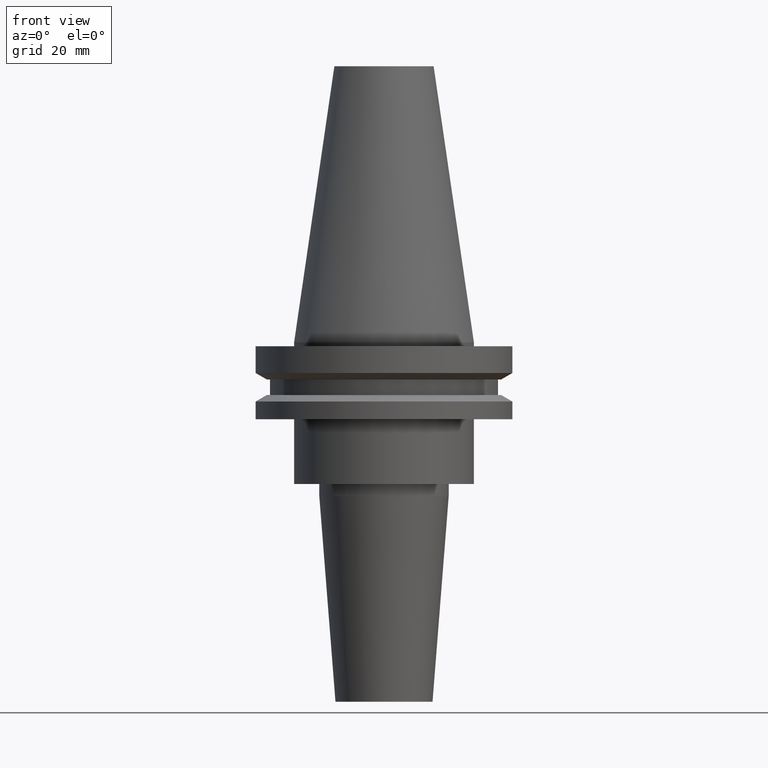
[diagram: clean part render]
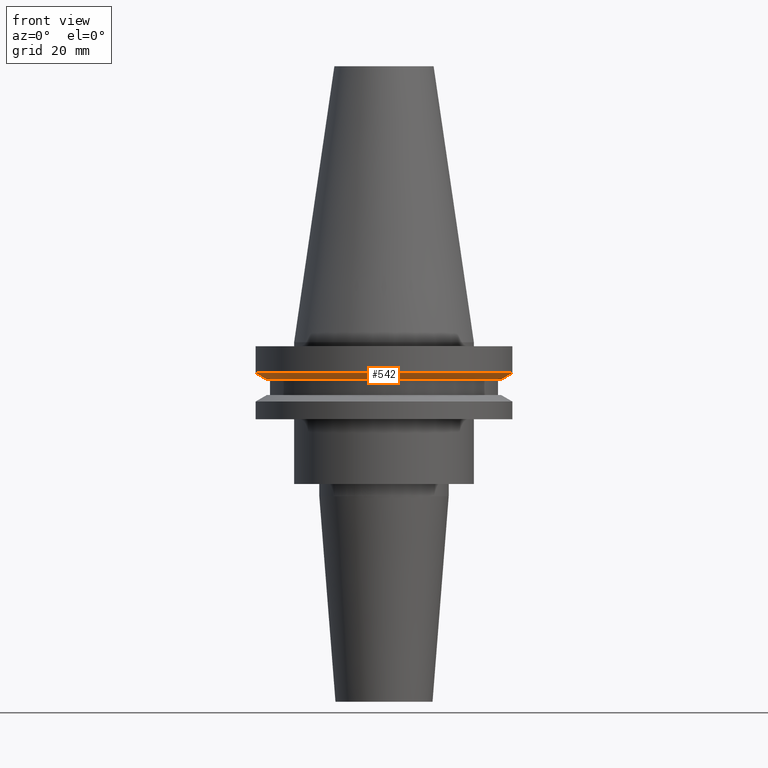
[diagram: same view with one face highlighted and labeled with its STEP entity id]
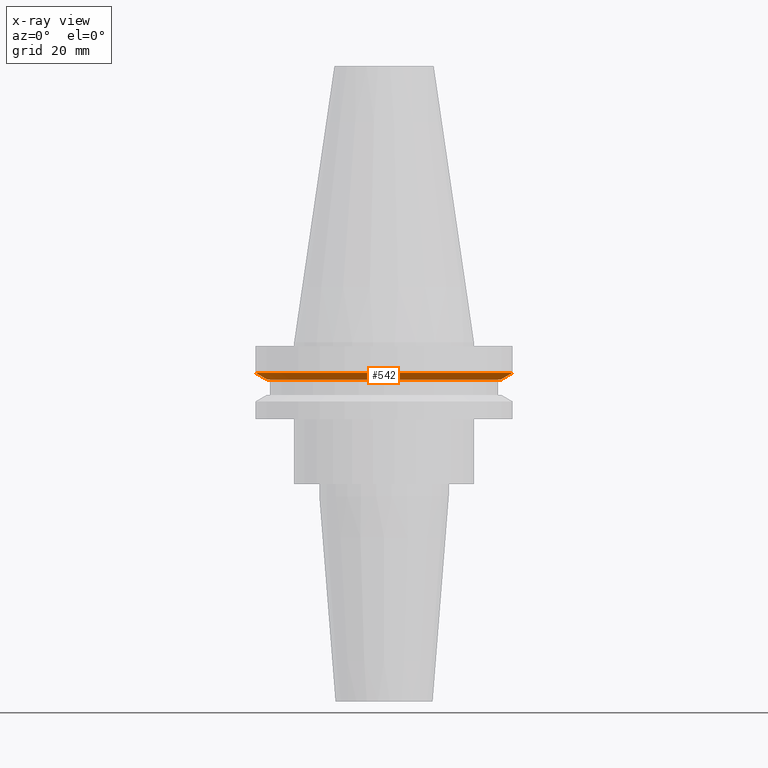
[diagram: x-ray of the same camera — body ghosted, the highlighted face saturated]
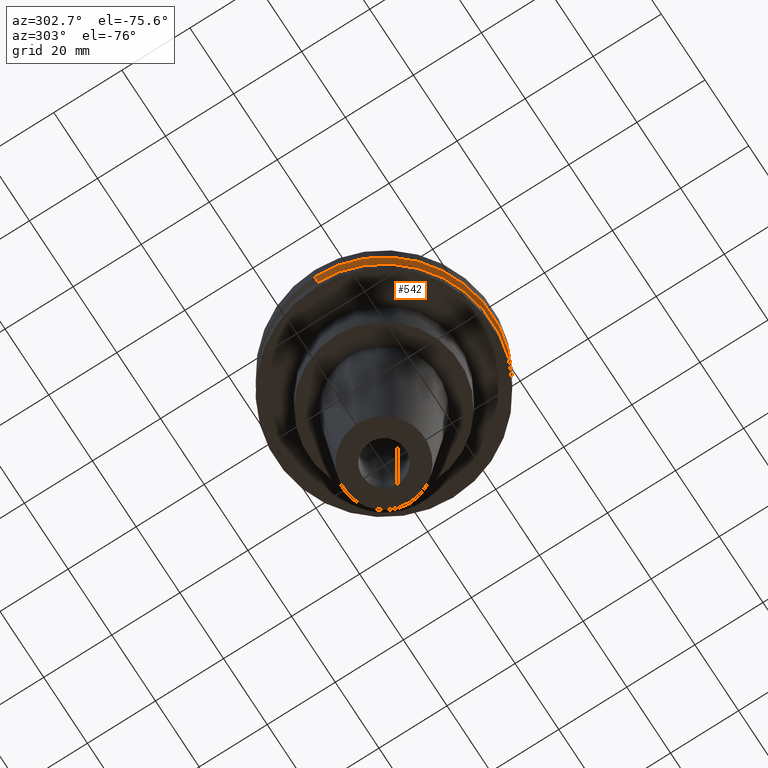
[diagram: same view with one face highlighted and labeled with its STEP entity id]
A machine part, front view. The second image highlights one B-rep face of the part: STEP entity #542.
The next image is the same camera in x-ray: the body ghosted, the highlighted face saturated — about 0% of this face is hidden behind the body in this view.
A second angle (auxiliary view) of the same face is appended — the face is thin or edge-on in the first view.
In plain terms, the highlighted conical surface has half-angle 60 deg.
Its self-contained STEP definition (entity closure, byte-faithful):
#2 = LINE ( 'NONE', #652, #561 ) ;
#7 = CARTESIAN_POINT ( 'NONE',  ( -28.97919780457007732, 3.548928183322474856E-15, -9.205000000000005400 ) ) ;
#46 = CARTESIAN_POINT ( 'NONE',  ( 28.97919780457007732, 0.000000000000000000, -9.205000000000005400 ) ) ;
#88 = VERTEX_POINT ( 'NONE', #516 ) ;
#139 = AXIS2_PLACEMENT_3D ( 'NONE', #200, #263, #186 ) ;
#140 = VERTEX_POINT ( 'NONE', #46 ) ;
#148 = AXIS2_PLACEMENT_3D ( 'NONE', #567, #248, #438 ) ;
#149 = CIRCLE ( 'NONE', #148, 31.75000000000000000 ) ;
#156 = ORIENTED_EDGE ( 'NONE', *, *, #398, .F. ) ;
#174 = EDGE_CURVE ( 'NONE', #749, #140, #698, .T. ) ;
#186 = DIRECTION ( 'NONE',  ( 1.000000000000000000, 0.000000000000000000, 0.000000000000000000 ) ) ;
#200 = CARTESIAN_POINT ( 'NONE',  ( 0.000000000000000000, 0.000000000000000000, -9.205000000000005400 ) ) ;
#207 = CARTESIAN_POINT ( 'NONE',  ( -28.97919780457007732, 3.718590885307660666E-15, -9.205000000000005400 ) ) ;
#227 = EDGE_CURVE ( 'NONE', #140, #88, #2, .T. ) ;
#248 = DIRECTION ( 'NONE',  ( -0.000000000000000000, -0.000000000000000000, 1.000000000000000000 ) ) ;
#251 = ORIENTED_EDGE ( 'NONE', *, *, #227, .T. ) ;
#263 = DIRECTION ( 'NONE',  ( -0.000000000000000000, -0.000000000000000000, 1.000000000000000000 ) ) ;
#326 = CARTESIAN_POINT ( 'NONE',  ( 0.000000000000000000, 0.000000000000000000, -9.205000000000005400 ) ) ;
#398 = EDGE_CURVE ( 'NONE', #802, #88, #149, .T. ) ;
#414 = DIRECTION ( 'NONE',  ( -0.8660254037844389297, 1.060575238724907285E-16, 0.4999999999999995004 ) ) ;
#438 = DIRECTION ( 'NONE',  ( 1.000000000000000000, 0.000000000000000000, 0.000000000000000000 ) ) ;
#516 = CARTESIAN_POINT ( 'NONE',  ( 31.75000000000000000, 0.000000000000000000, -7.605276606597335842 ) ) ;
#542 = ADVANCED_FACE ( 'NONE', ( #714 ), #809, .T. ) ;
#561 = VECTOR ( 'NONE', #655, 1000.000000000000000 ) ;
#567 = CARTESIAN_POINT ( 'NONE',  ( 0.000000000000000000, 0.000000000000000000, -7.605276606597335842 ) ) ;
#598 = LINE ( 'NONE', #7, #680 ) ;
#652 = CARTESIAN_POINT ( 'NONE',  ( 28.97919780457007732, 0.000000000000000000, -9.205000000000005400 ) ) ;
#654 = DIRECTION ( 'NONE',  ( -0.000000000000000000, -0.000000000000000000, 1.000000000000000000 ) ) ;
#655 = DIRECTION ( 'NONE',  ( 0.8660254037844389297, 0.000000000000000000, 0.4999999999999995004 ) ) ;
#661 = ORIENTED_EDGE ( 'NONE', *, *, #174, .T. ) ;
#672 = ORIENTED_EDGE ( 'NONE', *, *, #735, .F. ) ;
#680 = VECTOR ( 'NONE', #414, 1000.000000000000000 ) ;
#698 = CIRCLE ( 'NONE', #812, 28.97919780457007732 ) ;
#714 = FACE_OUTER_BOUND ( 'NONE', #727, .T. ) ;
#718 = DIRECTION ( 'NONE',  ( 1.000000000000000000, 0.000000000000000000, 0.000000000000000000 ) ) ;
#727 = EDGE_LOOP ( 'NONE', ( #672, #661, #251, #156 ) ) ;
#735 = EDGE_CURVE ( 'NONE', #749, #802, #598, .T. ) ;
#749 = VERTEX_POINT ( 'NONE', #207 ) ;
#802 = VERTEX_POINT ( 'NONE', #832 ) ;
#809 = CONICAL_SURFACE ( 'NONE', #139, 28.97919780457007732, 1.047197551196598297 ) ;
#812 = AXIS2_PLACEMENT_3D ( 'NONE', #326, #654, #718 ) ;
#832 = CARTESIAN_POINT ( 'NONE',  ( -31.75000000000000000, 3.888253587292846476E-15, -7.605276606597335842 ) ) ;